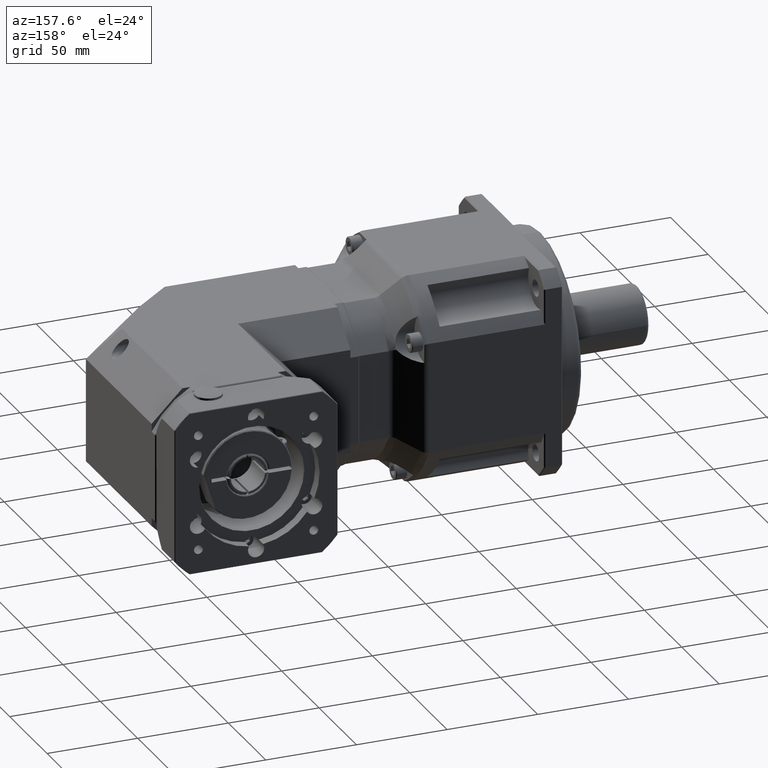
[diagram: clean part render]
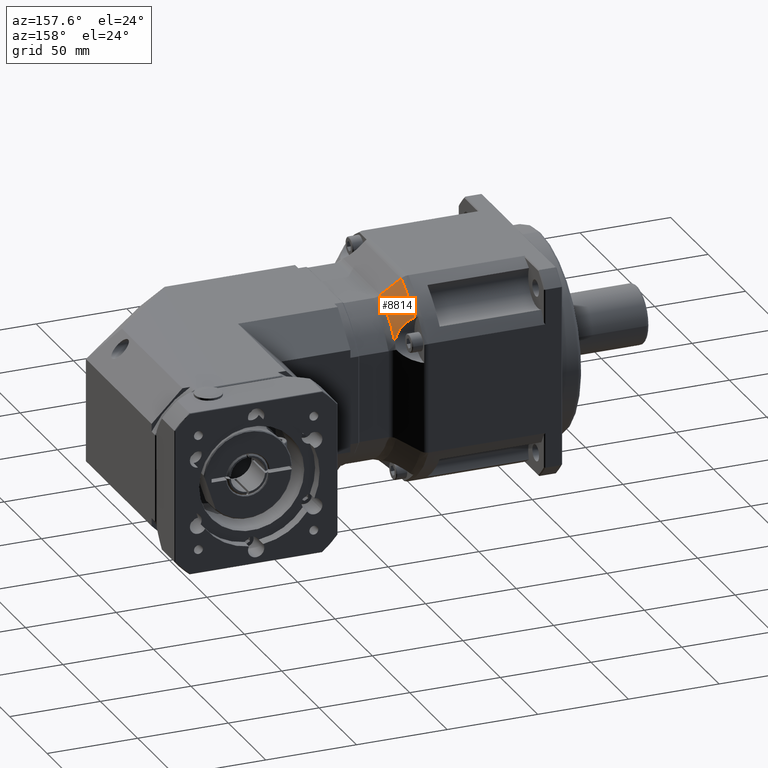
[diagram: same view with one face highlighted and labeled with its STEP entity id]
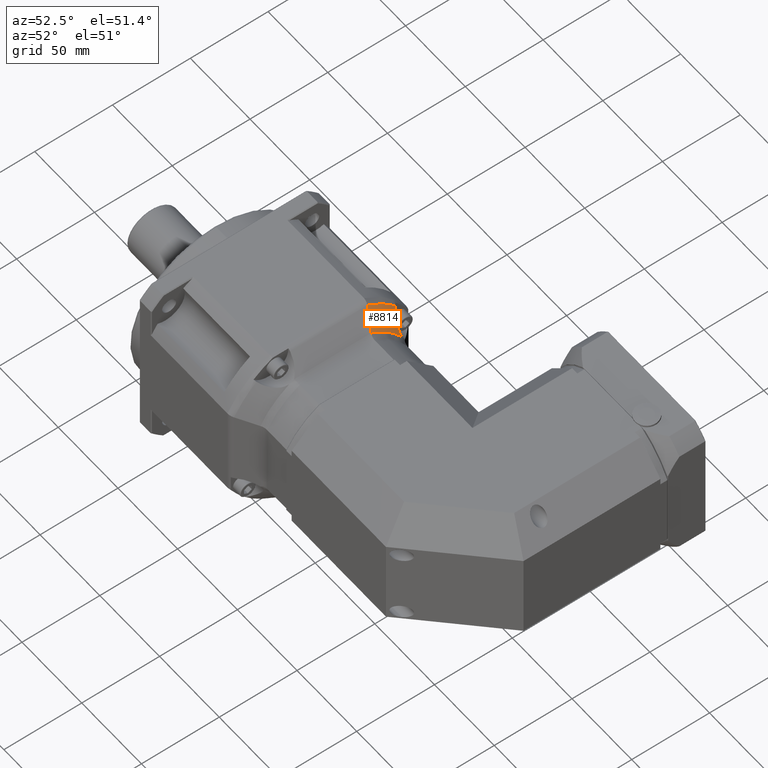
[diagram: same view with one face highlighted and labeled with its STEP entity id]
A machine part, auxiliary view. The second image highlights one B-rep face of the part: STEP entity #8814.
A second angle (auxiliary view) of the same face is appended — the face is thin or edge-on in the first view.
In plain terms, the highlighted face is a freeform B-spline surface patch.
Its self-contained STEP definition (entity closure, byte-faithful):
#16=B_SPLINE_SURFACE_WITH_KNOTS('',3,3,((#14368,#14369,#14370,#14371),(#14372,
#14373,#14374,#14375),(#14376,#14377,#14378,#14379),(#14380,#14381,#14382,
#14383),(#14384,#14385,#14386,#14387)),.UNSPECIFIED.,.F.,.F.,.F.,(4,1,4),
(4,4),(0.,0.504421031867686,0.882736805768451),(0.119280046147475,0.880719927093514),
 .UNSPECIFIED.);
#90=B_SPLINE_CURVE_WITH_KNOTS('',3,(#14390,#14391,#14392,#14393,#14394),
 .UNSPECIFIED.,.F.,.F.,(4,1,4),(-2.92789923609071,-1.42149637395935,3.53724280028153E-15),
 .UNSPECIFIED.);
#91=B_SPLINE_CURVE_WITH_KNOTS('',3,(#14396,#14397,#14398,#14399,#14400,
#14401,#14402,#14403,#14404,#14405),.UNSPECIFIED.,.F.,.F.,(4,2,2,2,4),(-2.24933036729598,
-2.0385005049886,-1.59364595601135,-0.882522466198683,-0.225383057342724),
 .UNSPECIFIED.);
#92=B_SPLINE_CURVE_WITH_KNOTS('',3,(#14407,#14408,#14409,#14410,#14411),
 .UNSPECIFIED.,.F.,.F.,(4,1,4),(-3.59764041851407,-1.54089638463462,-1.38832008098801),
 .UNSPECIFIED.);
#493=LINE('',#14412,#956);
#956=VECTOR('',#11391,14.2925105288198);
#2456=FACE_OUTER_BOUND('',#3176,.T.);
#3176=EDGE_LOOP('',(#6976,#6977,#6978,#6979));
#4402=VERTEX_POINT('',#14388);
#4403=VERTEX_POINT('',#14389);
#4404=VERTEX_POINT('',#14395);
#4405=VERTEX_POINT('',#14406);
#5356=EDGE_CURVE('',#4402,#4403,#90,.T.);
#5357=EDGE_CURVE('',#4402,#4404,#91,.T.);
#5358=EDGE_CURVE('',#4405,#4404,#92,.T.);
#5359=EDGE_CURVE('',#4405,#4403,#493,.T.);
#6976=ORIENTED_EDGE('',*,*,#5356,.F.);
#6977=ORIENTED_EDGE('',*,*,#5357,.T.);
#6978=ORIENTED_EDGE('',*,*,#5358,.F.);
#6979=ORIENTED_EDGE('',*,*,#5359,.T.);
#8814=ADVANCED_FACE('',(#2456),#16,.F.);
#11391=DIRECTION('',(0.66594268349415,-0.336215235528109,-0.66594268349415));
#14368=CARTESIAN_POINT('Ctrl Pts',(-41.8235629087951,65.6189479878859,134.384720912282));
#14369=CARTESIAN_POINT('Ctrl Pts',(-38.6508967381866,64.0171604313258,131.212054741673));
#14370=CARTESIAN_POINT('Ctrl Pts',(-35.4782305675781,62.4153728747657,128.039388571065));
#14371=CARTESIAN_POINT('Ctrl Pts',(-32.3055643969696,60.8135853182055,124.866722400456));
#14372=CARTESIAN_POINT('Ctrl Pts',(-41.8235629087951,71.2657471564539,131.404734277688));
#14373=CARTESIAN_POINT('Ctrl Pts',(-38.6508967381866,69.3249393386275,128.403542964246));
#14374=CARTESIAN_POINT('Ctrl Pts',(-35.4782305675781,67.3844618136799,125.402828851766));
#14375=CARTESIAN_POINT('Ctrl Pts',(-32.3055643969696,65.4436539958534,122.401637538324));
#14376=CARTESIAN_POINT('Ctrl Pts',(-41.8235629087951,80.3510866739892,124.683696320292));
#14377=CARTESIAN_POINT('Ctrl Pts',(-38.6508967381866,77.865944763049,122.07854730682));
#14378=CARTESIAN_POINT('Ctrl Pts',(-35.4782305675782,75.3806996059742,119.473261372938));
#14379=CARTESIAN_POINT('Ctrl Pts',(-32.3055643969697,72.895557695034,116.868112359465));
#14380=CARTESIAN_POINT('Ctrl Pts',(-41.8235629087951,87.327845827572,115.863330932838));
#14381=CARTESIAN_POINT('Ctrl Pts',(-38.6508967381867,84.4307261426373,113.785934259812));
#14382=CARTESIAN_POINT('Ctrl Pts',(-35.4782305675782,81.5336873099898,111.708543078102));
#14383=CARTESIAN_POINT('Ctrl Pts',(-32.3055643969697,78.6365676250551,109.631146405075));
#14384=CARTESIAN_POINT('Ctrl Pts',(-41.8235629087951,89.8548561159537,111.79571677931));
#14385=CARTESIAN_POINT('Ctrl Pts',(-38.6508967381867,86.8105461731059,109.96223688197));
#14386=CARTESIAN_POINT('Ctrl Pts',(-35.4782305675782,83.7662362302582,108.12875698463));
#14387=CARTESIAN_POINT('Ctrl Pts',(-32.3055643969697,80.7219262874105,106.29527708729));
#14388=CARTESIAN_POINT('',(-32.3055677839874,80.7219295373989,106.295279044645));
#14389=CARTESIAN_POINT('',(-32.3055700933645,60.8135881941508,124.866728096851));
#14390=CARTESIAN_POINT('Ctrl Pts',(-32.305567784029,80.7212705079433,106.294779557981));
#14391=CARTESIAN_POINT('Ctrl Pts',(-32.305565198595,78.2165230721004,110.298522834541));
#14392=CARTESIAN_POINT('Ctrl Pts',(-32.3055631542377,72.3008686611107,117.425615940593));
#14393=CARTESIAN_POINT('Ctrl Pts',(-32.3055669064139,64.7473373494552,122.772365177157));
#14394=CARTESIAN_POINT('Ctrl Pts',(-32.3055700933645,60.8135881941508,124.866728096851));
#14395=CARTESIAN_POINT('',(-41.8235624793306,83.798621889852,119.990633827507));
#14396=CARTESIAN_POINT('Ctrl Pts',(-32.3055677839874,80.7219295373989,106.295279044645));
#14397=CARTESIAN_POINT('Ctrl Pts',(-32.3979121380358,80.5142589021301,106.822591074052));
#14398=CARTESIAN_POINT('Ctrl Pts',(-32.5305990134682,80.3455848669919,107.356016482892));
#14399=CARTESIAN_POINT('Ctrl Pts',(-33.0526705869804,79.9363714709132,109.020322603166));
#14400=CARTESIAN_POINT('Ctrl Pts',(-33.5562365874237,79.8290656486057,110.135325548535));
#14401=CARTESIAN_POINT('Ctrl Pts',(-35.0887021545846,79.9008118529077,112.90148683845));
#14402=CARTESIAN_POINT('Ctrl Pts',(-36.3092225735847,80.2913960798158,114.580206905623));
#14403=CARTESIAN_POINT('Ctrl Pts',(-38.9783769704778,81.6804916855114,117.574360591584));
#14404=CARTESIAN_POINT('Ctrl Pts',(-40.3836184054247,82.621831643113,118.886279942679));
#14405=CARTESIAN_POINT('Ctrl Pts',(-41.8235624793306,83.798621889852,119.990633827507));
#14406=CARTESIAN_POINT('',(-41.8235629087951,65.6189479878859,134.384720912282));
#14407=CARTESIAN_POINT('Ctrl Pts',(-41.8235629087951,65.6189476658706,134.384720436272));
#14408=CARTESIAN_POINT('Ctrl Pts',(-41.823562563012,72.0187104277339,131.007260632912));
#14409=CARTESIAN_POINT('Ctrl Pts',(-41.8235624046625,78.263733440648,126.189727806005));
#14410=CARTESIAN_POINT('Ctrl Pts',(-41.8235624735052,83.446058129393,120.395803015878));
#14411=CARTESIAN_POINT('Ctrl Pts',(-41.823562479344,83.7987841798658,119.991160994077));
#14412=CARTESIAN_POINT('',(-43.3145634856386,66.3717111348368,135.875721489125));